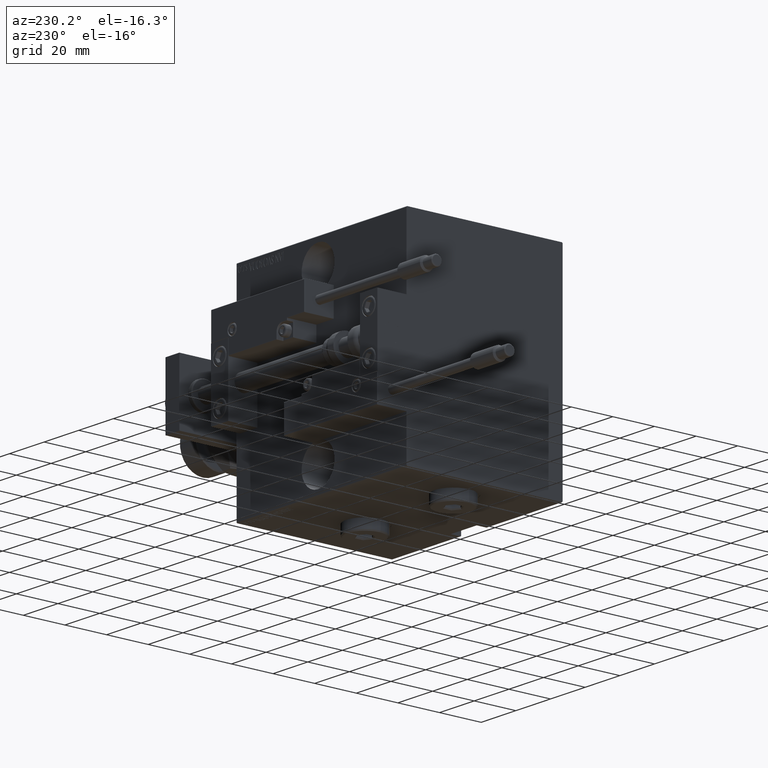
[diagram: clean part render]
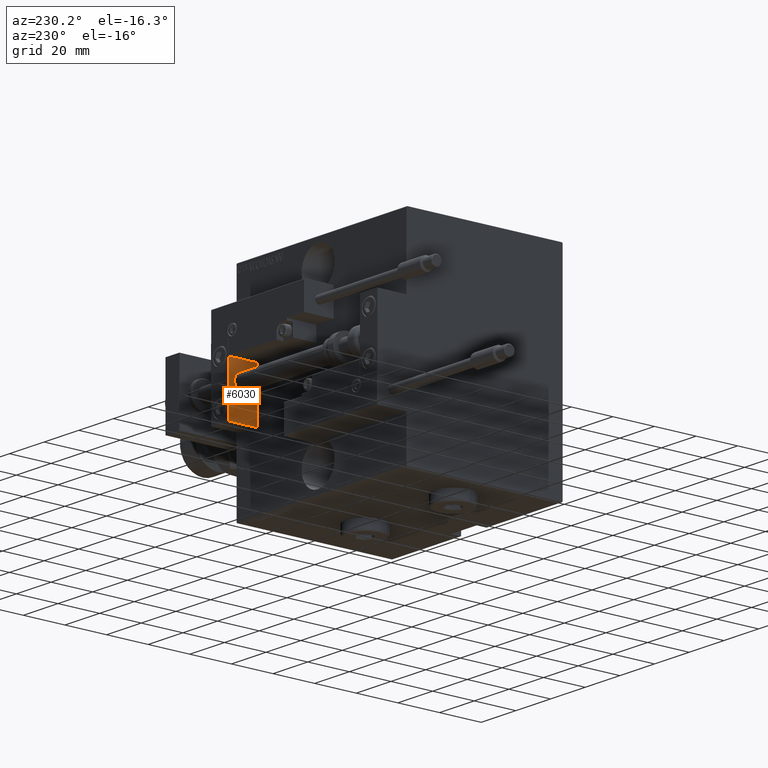
[diagram: same view with one face highlighted and labeled with its STEP entity id]
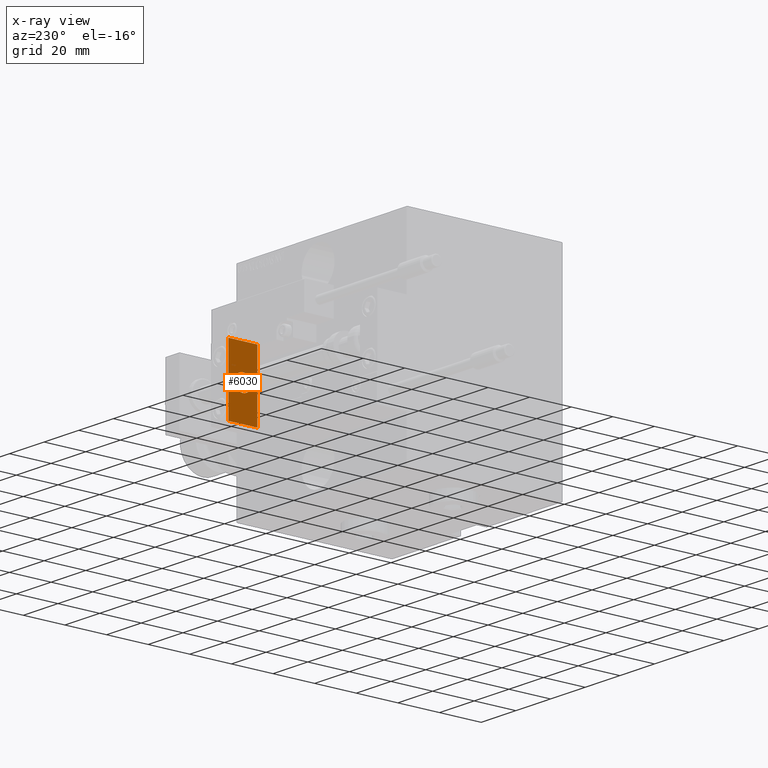
[diagram: x-ray of the same camera — body ghosted, the highlighted face saturated]
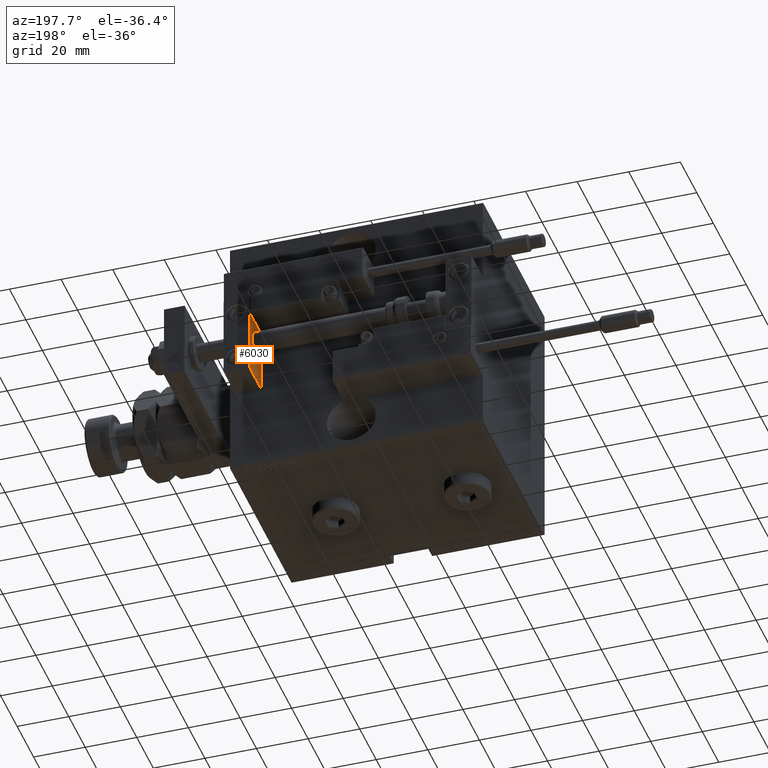
[diagram: same view with one face highlighted and labeled with its STEP entity id]
A machine part, auxiliary view. The second image highlights one B-rep face of the part: STEP entity #6030.
The next image is the same camera in x-ray: the body ghosted, the highlighted face saturated — about 0% of this face is hidden behind the body in this view.
A second angle (auxiliary view) of the same face is appended — the face is thin or edge-on in the first view.
In plain terms, the highlighted planar face has unit normal (-1, 0, 0).
Its self-contained STEP definition (entity closure, byte-faithful):
#221 = DIRECTION ( 'NONE',  ( 0.000000000000000000, -1.000000000000000000, 0.000000000000000000 ) ) ;
#262 = CARTESIAN_POINT ( 'NONE',  ( 0.000000000000000000, 0.000000000000000000, 0.000000000000000000 ) ) ;
#2213 = EDGE_LOOP ( 'NONE', ( #3975, #49300 ) ) ;
#3039 = CARTESIAN_POINT ( 'NONE',  ( 0.000000000000000000, 7.000000000000000000, -16.00000000000000711 ) ) ;
#3975 = ORIENTED_EDGE ( 'NONE', *, *, #20558, .F. ) ;
#5918 = VERTEX_POINT ( 'NONE', #19019 ) ;
#6030 = ADVANCED_FACE ( 'NONE', ( #40172, #32137 ), #52490, .T. ) ;
#6148 = EDGE_CURVE ( 'NONE', #20105, #47142, #20593, .T. ) ;
#7441 = AXIS2_PLACEMENT_3D ( 'NONE', #12187, #21282, #28794 ) ;
#8463 = ORIENTED_EDGE ( 'NONE', *, *, #49938, .F. ) ;
#8734 = EDGE_CURVE ( 'NONE', #18422, #5918, #20271, .T. ) ;
#12187 = CARTESIAN_POINT ( 'NONE',  ( 0.000000000000000000, 0.000000000000000000, 0.000000000000000000 ) ) ;
#12357 = DIRECTION ( 'NONE',  ( -1.000000000000000000, -0.000000000000000000, -0.000000000000000000 ) ) ;
#13346 = ORIENTED_EDGE ( 'NONE', *, *, #22737, .T. ) ;
#13978 = CIRCLE ( 'NONE', #51581, 4.000000000000000000 ) ;
#15739 = CARTESIAN_POINT ( 'NONE',  ( 0.000000000000000000, 4.898587196589412829E-16, -4.000000000000000000 ) ) ;
#15807 = DIRECTION ( 'NONE',  ( -1.000000000000000000, 0.000000000000000000, -0.000000000000000000 ) ) ;
#16635 = DIRECTION ( 'NONE',  ( 0.000000000000000000, 0.000000000000000000, 1.000000000000000000 ) ) ;
#17526 = VECTOR ( 'NONE', #221, 1000.000000000000000 ) ;
#18093 = ORIENTED_EDGE ( 'NONE', *, *, #45678, .F. ) ;
#18422 = VERTEX_POINT ( 'NONE', #15739 ) ;
#19019 = CARTESIAN_POINT ( 'NONE',  ( 0.000000000000000000, 0.000000000000000000, 4.000000000000000000 ) ) ;
#19909 = VECTOR ( 'NONE', #44254, 1000.000000000000000 ) ;
#20105 = VERTEX_POINT ( 'NONE', #3039 ) ;
#20271 = CIRCLE ( 'NONE', #7441, 4.000000000000000000 ) ;
#20530 = CARTESIAN_POINT ( 'NONE',  ( 0.000000000000000000, -7.000000000000000000, 15.99999999999999289 ) ) ;
#20558 = EDGE_CURVE ( 'NONE', #5918, #18422, #13978, .T. ) ;
#20593 = LINE ( 'NONE', #36944, #17526 ) ;
#21282 = DIRECTION ( 'NONE',  ( -1.000000000000000000, -0.000000000000000000, -0.000000000000000000 ) ) ;
#21308 = EDGE_LOOP ( 'NONE', ( #18093, #8463, #13346, #48071 ) ) ;
#22737 = EDGE_CURVE ( 'NONE', #52175, #20105, #45833, .T. ) ;
#23644 = LINE ( 'NONE', #27917, #19909 ) ;
#24424 = CARTESIAN_POINT ( 'NONE',  ( 0.000000000000000000, 7.000000000000000000, 15.99999999999999289 ) ) ;
#26404 = CARTESIAN_POINT ( 'NONE',  ( 0.000000000000000000, -7.000000000000000000, -16.00000000000000711 ) ) ;
#26938 = AXIS2_PLACEMENT_3D ( 'NONE', #43409, #15807, #39388 ) ;
#27917 = CARTESIAN_POINT ( 'NONE',  ( 0.000000000000000000, -7.000000000000000000, 15.99999999999999289 ) ) ;
#28051 = DIRECTION ( 'NONE',  ( 0.000000000000000000, -1.000000000000000000, 0.000000000000000000 ) ) ;
#28794 = DIRECTION ( 'NONE',  ( 0.000000000000000000, 0.000000000000000000, 1.000000000000000000 ) ) ;
#31544 = CARTESIAN_POINT ( 'NONE',  ( 0.000000000000000000, 7.000000000000000000, 15.99999999999999289 ) ) ;
#32137 = FACE_OUTER_BOUND ( 'NONE', #21308, .T. ) ;
#33772 = VECTOR ( 'NONE', #28051, 1000.000000000000000 ) ;
#34581 = VECTOR ( 'NONE', #41546, 1000.000000000000000 ) ;
#36944 = CARTESIAN_POINT ( 'NONE',  ( 0.000000000000000000, 7.000000000000000000, -16.00000000000000711 ) ) ;
#39388 = DIRECTION ( 'NONE',  ( -0.000000000000000000, 0.000000000000000000, 1.000000000000000000 ) ) ;
#40172 = FACE_BOUND ( 'NONE', #2213, .T. ) ;
#41546 = DIRECTION ( 'NONE',  ( 0.000000000000000000, 0.000000000000000000, -1.000000000000000000 ) ) ;
#43409 = CARTESIAN_POINT ( 'NONE',  ( 0.000000000000000000, 0.000000000000000000, 0.000000000000000000 ) ) ;
#44254 = DIRECTION ( 'NONE',  ( 0.000000000000000000, 0.000000000000000000, -1.000000000000000000 ) ) ;
#45678 = EDGE_CURVE ( 'NONE', #46352, #47142, #23644, .T. ) ;
#45833 = LINE ( 'NONE', #24424, #34581 ) ;
#46352 = VERTEX_POINT ( 'NONE', #20530 ) ;
#47142 = VERTEX_POINT ( 'NONE', #26404 ) ;
#47620 = LINE ( 'NONE', #31544, #33772 ) ;
#48071 = ORIENTED_EDGE ( 'NONE', *, *, #6148, .T. ) ;
#49300 = ORIENTED_EDGE ( 'NONE', *, *, #8734, .F. ) ;
#49938 = EDGE_CURVE ( 'NONE', #52175, #46352, #47620, .T. ) ;
#51581 = AXIS2_PLACEMENT_3D ( 'NONE', #262, #12357, #16635 ) ;
#51860 = CARTESIAN_POINT ( 'NONE',  ( 0.000000000000000000, 7.000000000000000000, 15.99999999999999289 ) ) ;
#52175 = VERTEX_POINT ( 'NONE', #51860 ) ;
#52490 = PLANE ( 'NONE',  #26938 ) ;